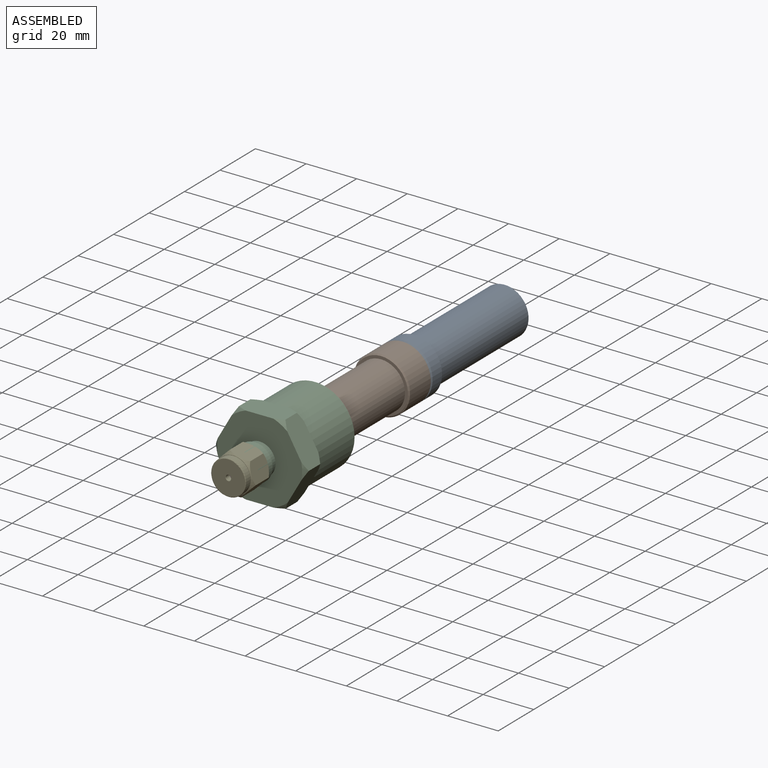
[diagram: assembled view]
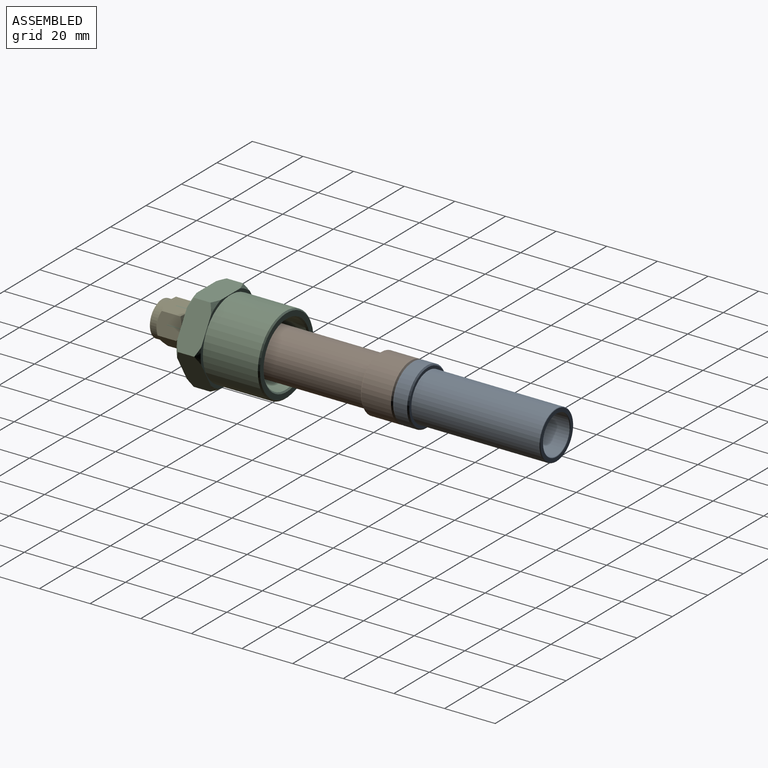
[diagram: assembled view, second angle]
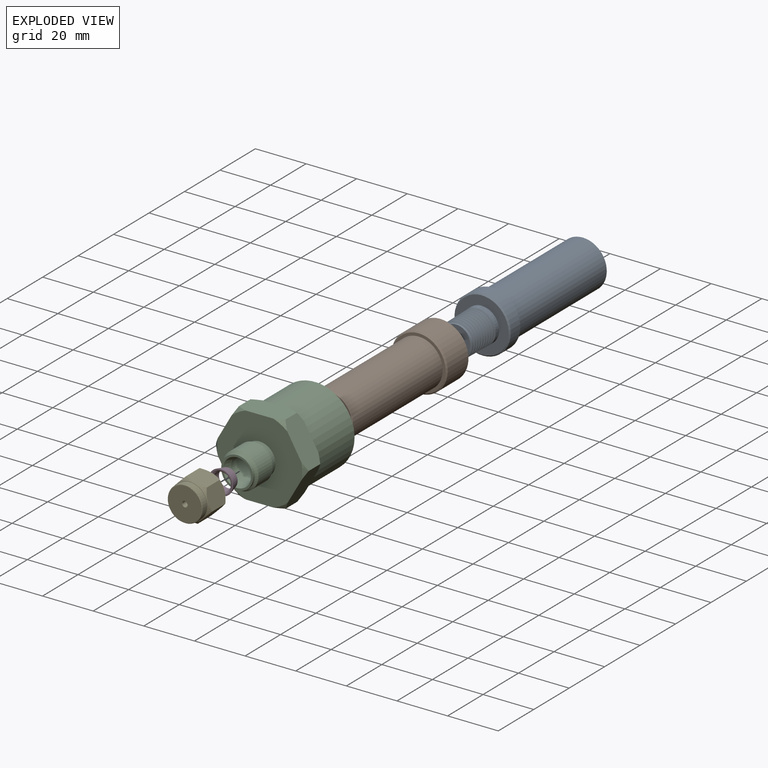
[diagram: exploded view]
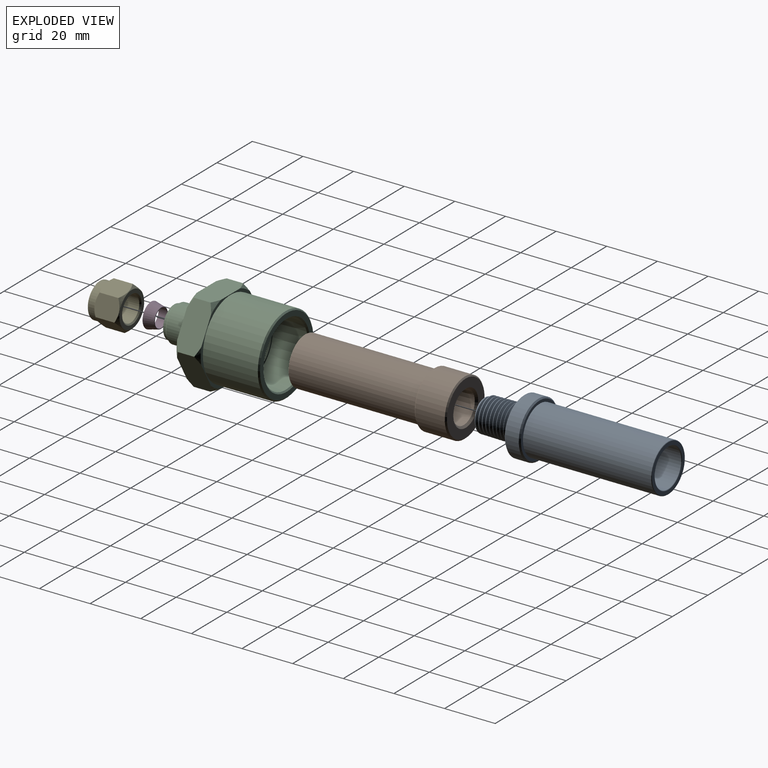
[diagram: exploded view, second angle]
ASSEMBLY  parts=5 mates=6
PART A: 28 faces, bbox 23.2x74.1x23.2 mm
  f0: cone r=6.62mm half-angle=0.9deg, axis (0,1,0), area 73.8mm2, adj f1,f16,f21,f24,f25
  f1: cone r=6.62mm half-angle=0.9deg, axis (0,1,0), area 6.3mm2, adj f0,f2,f21,f22
  f2: cone r=6.62mm half-angle=0.9deg, axis (0,1,0), area 7.4mm2, adj f1,f3,f21,f22
  f3: cone r=6.62mm half-angle=0.9deg, axis (0,1,0), area 8.5mm2, adj f2,f4,f21,f22
  f4: cone r=6.62mm half-angle=0.9deg, axis (0,1,0), area 9.5mm2, adj f3,f5,f21,f22
  f5: cone r=6.62mm half-angle=0.9deg, axis (0,1,0), area 10.6mm2, adj f4,f6,f21,f22
  f6: cone r=6.62mm half-angle=0.9deg, axis (0,1,0), area 11.6mm2, adj f5,f7,f21,f22
  f7: cone r=6.62mm half-angle=0.9deg, axis (0,1,0), area 12.6mm2, adj f6,f8,f21,f22
  f8: cone r=6.62mm half-angle=0.9deg, axis (0,1,0), area 13.6mm2, adj f7,f9,f21,f22
  f9: cone r=6.62mm half-angle=0.9deg, axis (0,1,0), area 9.2mm2, adj f8,f21,f22,f23
  f10: plane 12.4x12.4mm, normal (0,-1,0), area 52.6mm2, adj f20,f21,f23
  f11: cone r=0mm half-angle=59deg, axis (0,1,0), area 150.7mm2, adj f19,f20
  f12: plane 18.42x18.42mm, normal (0,1,0), area 75.5mm2, adj f26,f27
  f13: cylinder r=9.46mm len=50.55mm, axis (0,-1,0), area 3004.9mm2, adj f14,f27
  f14: plane 21.21x21.21mm, normal (0,1,0), area 72.1mm2, adj f13,f17
  f15: cylinder r=11.11mm len=22.23mm, axis (0,-1,0), area 372.4mm2, adj f17,f18
  f16: plane 21.21x21.21mm, normal (0,-1,0), area 205.5mm2, adj f0,f18
  f17: cone r=11.11mm half-angle=45deg, axis (0,-1,0), area 49mm2, adj f14,f15
  f18: cone r=10.6mm half-angle=45deg, axis (0,1,0), area 49mm2, adj f15,f16
  f19: cylinder r=7.54mm len=50.55mm, axis (0,1,0), area 2394.8mm2, adj f11,f26
  f20: cylinder r=3.97mm len=19.32mm, axis (0,-1,0), area 481.7mm2, adj f10,f11
  f21: bspline ~16.02x15.07mm, area 450.3mm2, adj f0,f1,f2,f3,f4,f5,f6,f7
  f22: bspline ~16.02x13.87mm, area 426.6mm2, adj f1,f2,f3,f4,f5,f6,f7,f8
  f23: bspline ~11.99x11.73mm, area 11.6mm2, adj f9,f10,f21,f22
  f24: plane 3.74x1.13mm, normal (0,-0.87,0.5), area 3.3mm2, adj f0,f21,f25
  f25: plane 3.74x1.11mm, normal (0,0.87,0.5), area 3.2mm2, adj f0,f22,f24
  f26: torus R=7.79mm, axis (0,1,0), area 19.1mm2, adj f12,f19
  f27: torus R=9.21mm, axis (0,1,0), area 23.5mm2, adj f12,f13
PART B: 13 faces, bbox 22.2x63.5x22.2 mm
  f0: plane 21.21x21.21mm, normal (0,-1,0), area 199.1mm2, adj f8,f12
  f1: cylinder r=11.11mm len=22.23mm, axis (0,-1,0), area 815.8mm2, adj f8,f9
  f2: plane 21.21x21.21mm, normal (0,1,0), area 72.1mm2, adj f3,f9
  f3: cylinder r=9.46mm len=50.55mm, axis (0,-1,0), area 3004.9mm2, adj f2,f11
  f4: plane 18.42x18.42mm, normal (0,1,0), area 160mm2, adj f10,f11
  f5: cylinder r=5.56mm len=53.21mm, axis (0,-1,0), area 1859.8mm2, adj f6,f10
  f6: plane 11.89x11.89mm, normal (0,-1,0), area 13.8mm2, adj f5,f7
  f7: cone r=6.24mm half-angle=1.7deg, axis (0,-1,0), area 353.6mm2, adj f6,f12
  f8: cone r=10.6mm half-angle=45deg, axis (0,1,0), area 49mm2, adj f0,f1
  f9: cone r=11.11mm half-angle=45deg, axis (0,-1,0), area 49mm2, adj f1,f2
  f10: torus R=5.82mm, axis (0,-1,0), area 14.2mm2, adj f4,f5
  f11: torus R=9.21mm, axis (0,-1,0), area 23.5mm2, adj f3,f4
  f12: cone r=6.22mm half-angle=45deg, axis (0,-1,0), area 46.2mm2, adj f0,f7
PART C: 38 faces, bbox 36.9x44.7x34.9 mm
  f0: plane 16.16x9.81mm, normal (-0.87,0,0.5), area 164.2mm2, adj f1,f5,f6,f16,f25,f29,f33,f34
  f1: plane 16.16x9.81mm, normal (-0.87,0,-0.5), area 164.2mm2, adj f0,f2,f6,f16,f28,f29,f32,f33
  f2: plane 18.61x9.8mm, normal (0,0,-1), area 164.2mm2, adj f1,f3,f6,f16,f27,f28,f31,f32
  f3: plane 16.16x9.81mm, normal (0.87,0,-0.5), area 164.2mm2, adj f2,f4,f6,f16,f26,f27,f30,f31
  f4: plane 16.16x9.81mm, normal (0.87,0,0.5), area 164.2mm2, adj f3,f5,f6,f16,f24,f26,f30,f35
  f5: plane 18.61x9.8mm, normal (0,0,1), area 164.2mm2, adj f0,f4,f6,f16,f24,f25,f34,f35
  f6: plane 33.61x31.75mm, normal (0,-1,0), area 721.6mm2, adj f0,f1,f2,f3,f4,f5,f13,f24
  f7: cone r=11.51mm half-angle=59deg, axis (0,1,0), area 432.7mm2, adj f17,f20
  f8: plane 12.59x12.59mm, normal (0,-1,0), area 30.1mm2, adj f9,f23
  f9: cylinder r=6.29mm len=12.59mm, axis (0,-1,0), area 40.2mm2, adj f8,f10
  f10: cone r=7.16mm half-angle=45deg, axis (0,1,0), area 51.6mm2, adj f9,f11
  f11: cylinder r=7.16mm len=14.31mm, axis (0,-1,0), area 356.3mm2, adj f10,f12
  f12: cone r=6.29mm half-angle=45deg, axis (0,-1,0), area 51.6mm2, adj f11,f13
  f13: cylinder r=6.29mm len=12.59mm, axis (0,-1,0), area 80.3mm2, adj f6,f12
  f14: plane 30.23x30.23mm, normal (0,1,0), area 181.2mm2, adj f36,f37
  f15: cylinder r=15.62mm len=31.24mm, axis (0,-1,0), area 2131.5mm2, adj f16,f36
  f16: plane 33.61x31.75mm, normal (0,1,0), area 79.4mm2, adj f0,f1,f2,f3,f4,f5,f15,f30
  f17: cylinder r=11.51mm len=23.01mm, axis (0,1,0), area 453.6mm2, adj f7,f18
  f18: plane 24.28x24.28mm, normal (0,1,0), area 46.9mm2, adj f17,f19
  f19: cone r=12.56mm half-angle=1.7deg, axis (0,1,0), area 1049mm2, adj f18,f37
  f20: cylinder r=3.78mm len=8.06mm, axis (0,-1,0), area 191.7mm2, adj f7,f21
  f21: plane 9.09x9.09mm, normal (0,-1,0), area 19.9mm2, adj f20,f22
  f22: cylinder r=4.55mm len=9.09mm, axis (0,-1,0), area 239.4mm2, adj f21,f23
  f23: cone r=4.55mm half-angle=17deg, axis (0,-1,0), area 100.4mm2, adj f8,f22
  f24: cone r=16.81mm half-angle=45deg, axis (0,1,0), area 7.1mm2, adj f4,f5,f6
  f25: cone r=16.81mm half-angle=45deg, axis (0,1,0), area 7.1mm2, adj f0,f5,f6
  f26: cone r=16.81mm half-angle=45deg, axis (0,1,0), area 7.1mm2, adj f3,f4,f6
  f27: cone r=16.81mm half-angle=45deg, axis (0,1,0), area 7.1mm2, adj f2,f3,f6
  f28: cone r=16.81mm half-angle=45deg, axis (0,1,0), area 7.1mm2, adj f1,f2,f6
  f29: cone r=16.81mm half-angle=45deg, axis (0,1,0), area 7.1mm2, adj f0,f1,f6
  f30: cone r=18.33mm half-angle=45deg, axis (0,-1,0), area 7.1mm2, adj f3,f4,f16
  f31: cone r=18.33mm half-angle=45deg, axis (0,-1,0), area 7.1mm2, adj f2,f3,f16
  f32: cone r=18.33mm half-angle=45deg, axis (0,-1,0), area 7.1mm2, adj f1,f2,f16
  f33: cone r=18.33mm half-angle=45deg, axis (0,-1,0), area 7.1mm2, adj f0,f1,f16
  f34: cone r=18.33mm half-angle=45deg, axis (0,-1,0), area 7.1mm2, adj f0,f5,f16
  f35: cone r=18.33mm half-angle=45deg, axis (0,-1,0), area 7.1mm2, adj f4,f5,f16
  f36: cone r=15.62mm half-angle=45deg, axis (0,-1,0), area 69.4mm2, adj f14,f15
  f37: cone r=12.54mm half-angle=45deg, axis (0,1,0), area 59.6mm2, adj f14,f19
PART D: 8 faces, bbox 10.4x4.1x10.4 mm
  f0: cone r=3.8mm half-angle=14deg, axis (0,-1,0), area 110.5mm2, adj f6,f7
  f1: plane 7.53x7.53mm, normal (0,1,0), area 3.8mm2, adj f5,f6
  f2: cylinder r=3.55mm len=7.1mm, axis (0,-1,0), area 75.4mm2, adj f3,f5
  f3: cone r=4.19mm half-angle=45deg, axis (0,-1,0), area 21.8mm2, adj f2,f4
  f4: plane 9.5x9.5mm, normal (0,-1,0), area 15.9mm2, adj f3,f7
  f5: torus R=3.6mm, axis (0,-1,0), area 1.8mm2, adj f1,f2
  f6: torus R=3.76mm, axis (0,-1,0), area 1.6mm2, adj f0,f1
  f7: torus R=4.75mm, axis (0,1,0), area 2.8mm2, adj f0,f4
PART E: 22 faces, bbox 16.5x12.7x16.5 mm
  f0: plane 9.59x7.14mm, normal (-0.87,0,0.5), area 72.7mm2, adj f1,f5,f16,f17
  f1: plane 9.59x8.26mm, normal (0,0,1), area 72.7mm2, adj f0,f2,f16,f17
  f2: plane 9.59x7.14mm, normal (0.87,0,0.5), area 72.7mm2, adj f1,f3,f16,f17
  f3: plane 9.59x7.14mm, normal (0.87,0,-0.5), area 72.7mm2, adj f2,f4,f16,f17
  f4: plane 9.59x8.26mm, normal (0,0,-1), area 72.7mm2, adj f3,f5,f16,f17
  f5: plane 9.59x7.14mm, normal (-0.87,0,-0.5), area 72.7mm2, adj f0,f4,f16,f17
  f6: plane 13.96x13.96mm, normal (0,-1,0), area 59.3mm2, adj f16,f19
  f7: plane 13.96x13.96mm, normal (0,1,0), area 5.3mm2, adj f8,f17
  f8: cylinder r=6.86mm len=13.72mm, axis (0,-1,0), area 109.4mm2, adj f7,f18
  f9: plane 13.21x13.21mm, normal (0,1,0), area 132.7mm2, adj f18,f20
  f10: cylinder r=1.05mm len=2.1mm, axis (0,-1,0), area 13.2mm2, adj f20,f21
  f11: cone r=4.95mm half-angle=82deg, axis (0,-1,0), area 73.6mm2, adj f12,f21
  f12: plane 11.18x11.18mm, normal (0,-1,0), area 21mm2, adj f11,f13
  f13: cylinder r=5.59mm len=11.18mm, axis (0,-1,0), area 53.5mm2, adj f12,f14
  f14: cone r=3.17mm half-angle=45deg, axis (0,1,0), area 29.7mm2, adj f13,f15
  f15: cylinder r=4.95mm len=9.91mm, axis (0,-1,0), area 225.3mm2, adj f14,f19
  f16: cone r=6.98mm half-angle=45deg, axis (0,1,0), area 33.6mm2, adj f0,f1,f2,f3,f4,f5,f6
  f17: cone r=8.25mm half-angle=45deg, axis (0,-1,0), area 33.6mm2, adj f0,f1,f2,f3,f4,f5,f7
  f18: torus R=6.6mm, axis (0,-1,0), area 17mm2, adj f8,f9
  f19: cone r=4.95mm half-angle=45deg, axis (0,-1,0), area 23.5mm2, adj f6,f15
  f20: torus R=1.18mm, axis (0,-1,0), area 1.4mm2, adj f9,f10
  f21: torus R=1.18mm, axis (0,1,0), area 1.2mm2, adj f10,f11
PLACE A rot(axis=(0,-1,0),61deg) t=(0,0,0)mm
PLACE B rot(axis=(0.76,0,-0.65),180deg) t=(0,15.11,0)mm
PLACE C rot(axis=(0,1,0),59.8deg) t=(0,-78.79,0)mm
PLACE D rot(axis=(0,1,0),42.5deg) t=(0,-79.81,0)mm
PLACE E rot(axis=(0.99,0,-0.12),180deg) t=(0,-71.04,0)mm
MATE planar C.f7 <-> B.f1  axis (0,1,0) through (0,-48.39,0)mm
MATE cylindrical B.f1 <-> C.f7  axis (0,-1,0) through (0,-48.39,0)mm
MATE revolute B.f1 <-> A.f0  axis (0,1,0) through (0,15.11,0)mm
MATE planar C.f7 <-> E.f8  axis (0,-1,0) through (0,-78.79,0)mm
MATE cylindrical C.f7 <-> E.f8  axis (0,-1,0) through (0,-78.79,0)mm
MATE revolute C.f7 <-> D.f0  axis (0,-1,0) through (0,-75.74,0)mm
